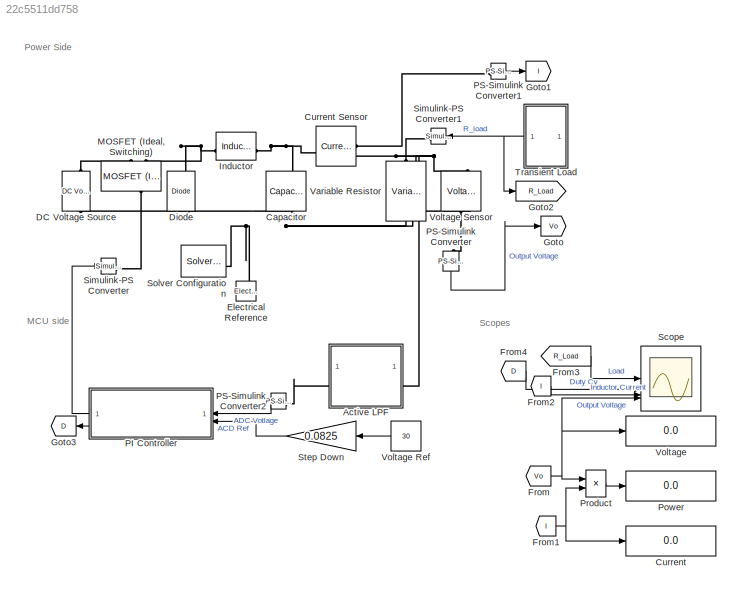
MODEL slx_22c5511dd758
KIND model
CONFIG AbsTol = auto
CONFIG EnableMultiTasking = off
CONFIG FixedStep = auto
CONFIG MaxStep = auto
CONFIG MinStep = auto
CONFIG RelTol = 1e-3
CONFIG SampleTimeConstraint = Unconstrained
CONFIG SolverName = VariableStepAuto
CONFIG StartTime = 0.0
CONFIG StopTime = 5
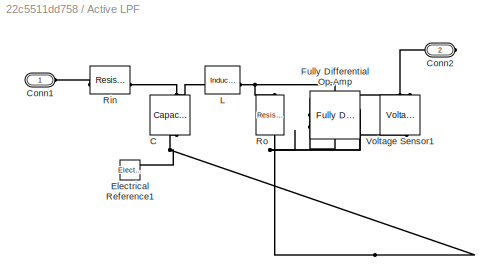
BLOCK [SubSystem] Active LPF
  NameLocation = top
BLOCK [Reference] Active LPF/C  REF=ee_lib/Passive/Capacitor
  NameLocation = left
  SourceBlock = ee_lib/Passive/Capacitor
  SourceType = Capacitor
BLOCK [PMIOPort] Active LPF/Conn1
  Side = Left
BLOCK [PMIOPort] Active LPF/Conn2
  Port = 2
  Side = Right
BLOCK [Reference] Active LPF/Electrical Reference1  REF=fl_lib/Electrical/Electrical Elements/Electrical Reference
  LibrarySourceBlock = ee_lib/Connectors &\nReferences/Electrical Reference
  NameLocation = right
  SourceBlock = fl_lib/Electrical/Electrical Elements/Electrical Reference
  SourceType = Electrical Reference
BLOCK [Reference] Active LPF/Fully Differential Op-Amp  REF=ee_lib/Integrated Circuits/Fully Differential
Op-Amp
  SourceBlock = ee_lib/Integrated Circuits/Fully Differential\nOp-Amp
  SourceType = Fully Differential\nOp-Amp
BLOCK [Reference] Active LPF/L  REF=ee_lib/Passive/Inductor
  SourceBlock = ee_lib/Passive/Inductor
  SourceType = Inductor
BLOCK [Reference] Active LPF/Rin  REF=ee_lib/Passive/Resistor
  SourceBlock = ee_lib/Passive/Resistor
  SourceType = Resistor
BLOCK [Reference] Active LPF/Ro  REF=ee_lib/Passive/Resistor
  NameLocation = left
  SourceBlock = ee_lib/Passive/Resistor
  SourceType = Resistor
BLOCK [Reference] Active LPF/Voltage Sensor1  REF=fl_lib/Electrical/Electrical Sensors/Voltage Sensor
  NameLocation = right
  SourceBlock = fl_lib/Electrical/Electrical Sensors/Voltage Sensor
  SourceType = Voltage Sensor
BLOCK [Reference] Capacitor  REF=fl_lib/Electrical/Electrical Elements/Capacitor
  NameLocation = left
  SourceBlock = fl_lib/Electrical/Electrical Elements/Capacitor
  SourceType = Capacitor
BLOCK [Display] Current
  Decimation = 1
BLOCK [Reference] Current Sensor  REF=fl_lib/Electrical/Electrical Sensors/Current Sensor
  SourceBlock = fl_lib/Electrical/Electrical Sensors/Current Sensor
  SourceType = Current Sensor
BLOCK [Reference] DC Voltage Source  REF=ee_lib/Additional
Components/SPICE Sources/DC Voltage Source
  NameLocation = right
  SourceBlock = ee_lib/Additional\nComponents/SPICE Sources/DC Voltage Source
  SourceType = DC Voltage Source
BLOCK [Reference] Diode  REF=fl_lib/Electrical/Electrical Elements/Diode
  NameLocation = right
  SourceBlock = fl_lib/Electrical/Electrical Elements/Diode
  SourceType = Diode
BLOCK [Reference] Electrical Reference  REF=fl_lib/Electrical/Electrical Elements/Electrical Reference
  LibrarySourceBlock = ee_lib/Connectors &\nReferences/Electrical Reference
  NameLocation = right
  SourceBlock = fl_lib/Electrical/Electrical Elements/Electrical Reference
  SourceType = Electrical Reference
BLOCK [From] From
  GotoTag = Vo
BLOCK [From] From1
  GotoTag = I
BLOCK [From] From2
  GotoTag = I
BLOCK [From] From3
  GotoTag = R_Load
BLOCK [From] From4
  GotoTag = D
BLOCK [Goto] Goto
  GotoTag = Vo
BLOCK [Goto] Goto1
  GotoTag = I
BLOCK [Goto] Goto2
  GotoTag = R_Load
BLOCK [Goto] Goto3
  GotoTag = D
  NameLocation = top
BLOCK [Reference] Inductor  REF=ee_lib/Passive/Inductor
  SourceBlock = ee_lib/Passive/Inductor
  SourceType = Inductor
BLOCK [Reference] MOSFET (Ideal, Switching)  REF=ee_lib/Semiconductors &
Converters/MOSFET
(Ideal,
Switching)
  NameLocation = right
  SourceBlock = ee_lib/Semiconductors &\nConverters/MOSFET\n(Ideal,\nSwitching)
  SourceType = MOSFET\n(Ideal,\nSwitching)
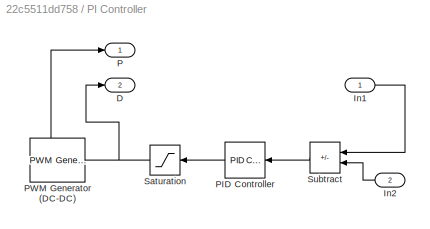
BLOCK [SubSystem] PI Controller
  NameLocation = top
BLOCK [Outport] PI Controller/D
  Port = 2
BLOCK [Inport] PI Controller/In1
BLOCK [Inport] PI Controller/In2
  NameLocation = top
  Port = 2
BLOCK [Outport] PI Controller/P
BLOCK [Reference] PI Controller/PID Controller  REF=slpidlib/PID Controller
  LibrarySourceBlock = simulink/Continuous/PID Controller
  NameLocation = top
  SourceBlock = slpidlib/PID Controller
  SourceType = PID 1dof
BLOCK [Reference] PI Controller/PWM Generator (DC-DC)  REF=spsPWMGeneratorDCDCLib/PWM Generator
(DC-DC)
  LibrarySourceBlock = sps_lib/Power Electronics/Power Electronics Control/PWM Generator\n(DC-DC)
  NameLocation = top
  SourceBlock = spsPWMGeneratorDCDCLib/PWM Generator\n(DC-DC)
  SourceType = PWM Generator (DC-DC)
BLOCK [Saturate] PI Controller/Saturation
  LowerLimit = -0.6
  NameLocation = top
  UpperLimit = 0.999
BLOCK [Sum] PI Controller/Subtract
  IconShape = rectangular
  Inputs = -+
  NameLocation = top
BLOCK [Reference] PS-Simulink Converter  REF=nesl_utility/PS-Simulink
Converter
  NameLocation = left
  SourceBlock = nesl_utility/PS-Simulink\nConverter
  SourceType = PS-Simulink\nConverter
BLOCK [Reference] PS-Simulink Converter1  REF=nesl_utility/PS-Simulink
Converter
  SourceBlock = nesl_utility/PS-Simulink\nConverter
  SourceType = PS-Simulink\nConverter
BLOCK [Reference] PS-Simulink Converter2  REF=nesl_utility/PS-Simulink
Converter
  NameLocation = top
  SourceBlock = nesl_utility/PS-Simulink\nConverter
  SourceType = PS-Simulink\nConverter
BLOCK [Display] Power
  Decimation = 1
BLOCK [Product] Product
BLOCK [Scope] Scope
  Floating = off
  NumInputPorts = 4
  ScopeSpecificationString = Simulink.scopes.TimeScopeBlockCfg('CurrentConfiguration', extmgr.ConfigurationSet(extmgr.Configuration('Core','General UI',true,'FigureColor',[0 0 0]),extmgr.Configuration('Core','Source UI',true),extmgr.Configuration('Sources','WiredSimulink',true,'DataLoggingVariableName','ScopeData1'),extmgr.Configuration('Visuals','Time Domain',true,'SerializedDisplays',{struct('MinYLimReal','47.00000','MaxYLi...<+4335ch>
BLOCK [Reference] Simulink-PS Converter  REF=nesl_utility/Simulink-PS
Converter
  SourceBlock = nesl_utility/Simulink-PS\nConverter
  SourceType = Simulink-PS\nConverter
BLOCK [Reference] Simulink-PS Converter1  REF=nesl_utility/Simulink-PS
Converter
  NameLocation = top
  SourceBlock = nesl_utility/Simulink-PS\nConverter
  SourceType = Simulink-PS\nConverter
BLOCK [Reference] Solver Configuration  REF=nesl_utility/Solver
Configuration
  SourceBlock = nesl_utility/Solver\nConfiguration
  SourceType = Solver\nConfiguration
BLOCK [Gain] Step Down
  Gain = 0.0825
  NameLocation = top
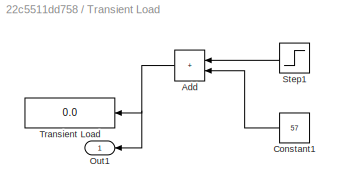
BLOCK [SubSystem] Transient Load
  NameLocation = top
BLOCK [Sum] Transient Load/Add
  IconShape = rectangular
  NameLocation = top
BLOCK [Constant] Transient Load/Constant1
  NameLocation = top
  Value = 57
BLOCK [Outport] Transient Load/Out1
BLOCK [Step] Transient Load/Step1
  After = 43
  NameLocation = top
  SampleTime = 0
  Time = 0.25
BLOCK [Display] Transient Load/Transient Load
  Decimation = 1
  NameLocation = top
BLOCK [Reference] Variable Resistor  REF=fl_lib/Electrical/Electrical Elements/Variable Resistor
  NameLocation = left
  SourceBlock = fl_lib/Electrical/Electrical Elements/Variable Resistor
  SourceType = Variable Resistor
BLOCK [Display] Voltage
  Decimation = 1
BLOCK [Constant] Voltage Ref
  NameLocation = top
  Value = 30
BLOCK [Reference] Voltage Sensor  REF=fl_lib/Electrical/Electrical Sensors/Voltage Sensor
  NameLocation = right
  SourceBlock = fl_lib/Electrical/Electrical Sensors/Voltage Sensor
  SourceType = Voltage Sensor
ANNOTATION (root): MCU side
ANNOTATION (root): Power Side
ANNOTATION (root): Scopes
NET From1:1 -> Current:1, Product:2
LINE From2:1 -> Scope:3
LINE From3:1 -> Scope:1
LINE From4:1 -> Scope:2
NET From:1 -> Product:1, Scope:4, Voltage:1
LINE PI Controller/In1:1 -> PI Controller/Subtract:1
LINE PI Controller/In2:1 -> PI Controller/Subtract:2
LINE PI Controller/PID Controller:1 -> PI Controller/Saturation:1
LINE PI Controller/PWM Generator (DC-DC):1 -> PI Controller/P:1
NET PI Controller/Saturation:1 -> PI Controller/D:1, PI Controller/PWM Generator (DC-DC):1
LINE PI Controller/Subtract:1 -> PI Controller/PID Controller:1
LINE PI Controller:1 -> Simulink-PS Converter:1
LINE PI Controller:2 -> Goto3:1
LINE PS-Simulink Converter1:1 -> Goto1:1
LINE PS-Simulink Converter2:1 -> PI Controller:1
LINE PS-Simulink Converter:1 -> Goto:1
LINE Product:1 -> Power:1
LINE Step Down:1 -> PI Controller:2
NET Transient Load/Add:1 -> Transient Load/Out1:1, Transient Load/Transient Load:1
LINE Transient Load/Constant1:1 -> Transient Load/Add:2
LINE Transient Load/Step1:1 -> Transient Load/Add:1
NET Transient Load:1 -> Goto2:1, Simulink-PS Converter1:1
LINE Voltage Ref:1 -> Step Down:1
PNET net1: Active LPF/C:LConn1 -- Active LPF/L:LConn1 -- Active LPF/Rin:RConn1
PNET net2: Active LPF/C:RConn1 -- Active LPF/Electrical Reference1:LConn1 -- Active LPF/Fully Differential Op-Amp:LConn1 -- Active LPF/Fully Differential Op-Amp:LConn2 -- Active LPF/Ro:RConn1
PLINE Active LPF/Conn1:RConn1 -- Active LPF/Rin:LConn1
PLINE Active LPF/Conn2:RConn1 -- Active LPF/Voltage Sensor1:RConn1
PNET net3: Active LPF/Fully Differential Op-Amp:LConn3 -- Active LPF/L:RConn1 -- Active LPF/Ro:LConn1
PLINE Active LPF/Fully Differential Op-Amp:RConn1 -- Active LPF/Voltage Sensor1:LConn1
PLINE Active LPF/Fully Differential Op-Amp:RConn2 -- Active LPF/Voltage Sensor1:RConn2
PNET net4: Active LPF:LConn1 -- Current Sensor:RConn2 -- Variable Resistor:LConn2 -- Voltage Sensor:LConn1
PLINE Active LPF:RConn1 -- PS-Simulink Converter2:LConn1
PNET net5: Capacitor:LConn1 -- Current Sensor:LConn1 -- Inductor:RConn1
PNET net6: Capacitor:RConn1 -- DC Voltage Source:RConn1 -- Diode:LConn1 -- Electrical Reference:LConn1 -- Solver Configuration:RConn1 -- Variable Resistor:RConn1 -- Voltage Sensor:RConn2
PLINE Current Sensor:RConn1 -- PS-Simulink Converter1:LConn1
PLINE DC Voltage Source:LConn1 -- MOSFET (Ideal, Switching):RConn1
PNET net7: Diode:RConn1 -- Inductor:LConn1 -- MOSFET (Ideal, Switching):RConn2
PLINE MOSFET (Ideal, Switching):LConn1 -- Simulink-PS Converter:RConn1
PLINE PS-Simulink Converter:LConn1 -- Voltage Sensor:RConn1
PLINE Simulink-PS Converter1:RConn1 -- Variable Resistor:LConn1
note: NET lines group one-source signal fan-out (src -> all destinations, sorted); 1:1 wires keep LINE; PNET lines group multi-terminal physical nets as a canonical sorted terminal list (undirected conserving connections); 2-terminal nets keep the pairwise PLINE form
